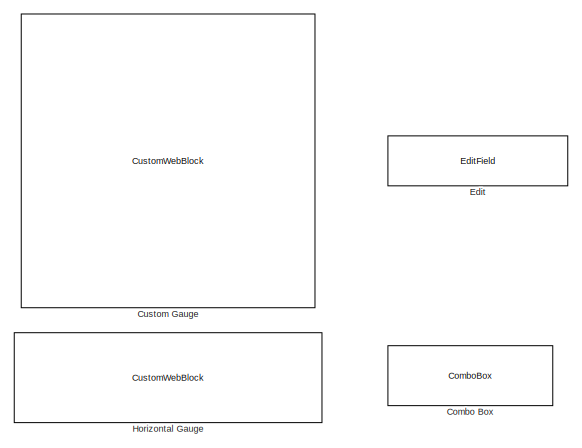
[diagram: root canvas - part 1/2, top left region]
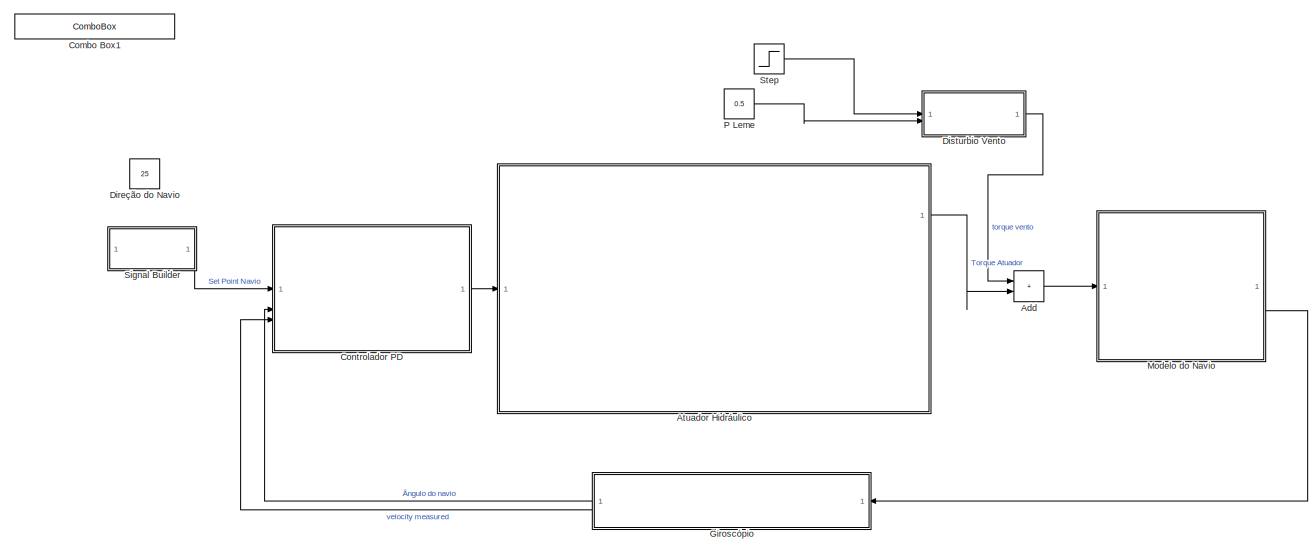
[diagram: root canvas - part 2/2, full width, bottom band]
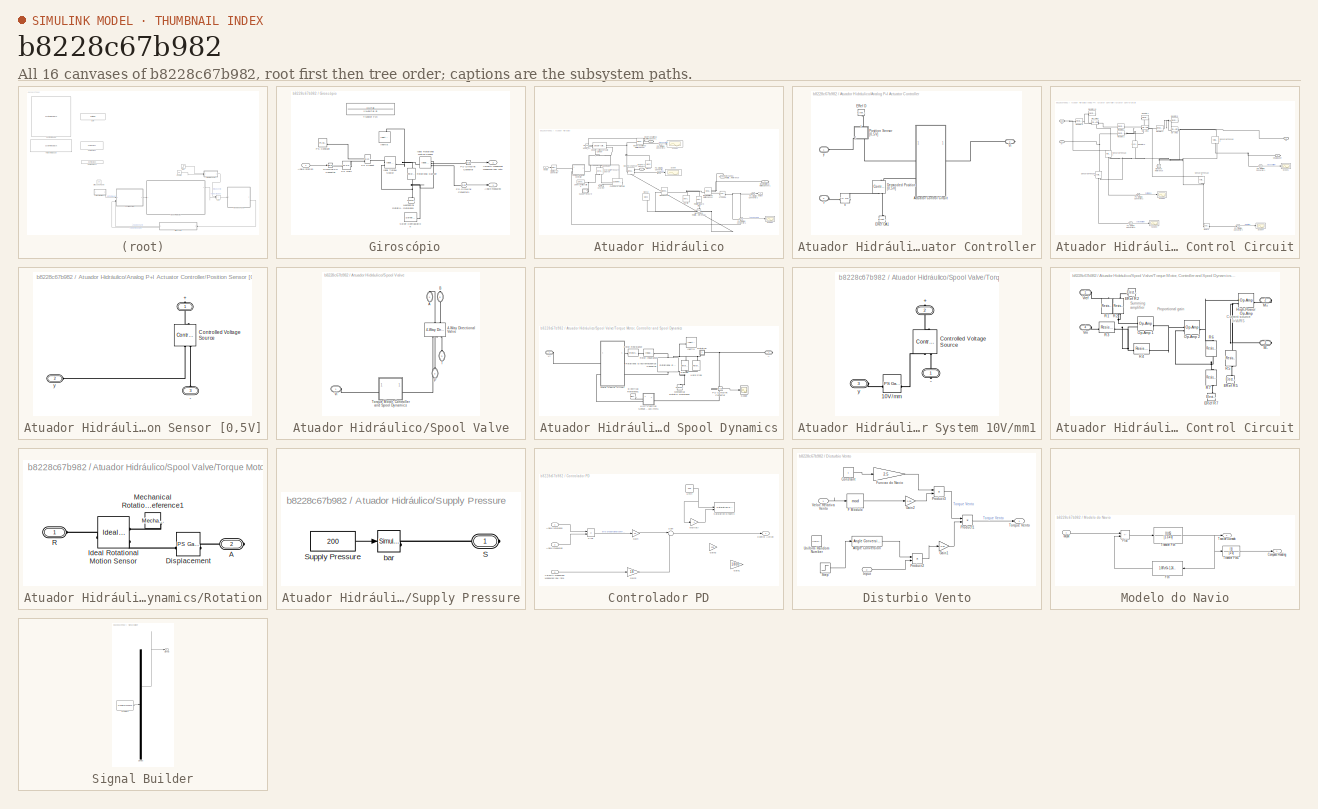
[diagram: thumbnail index - all 16 canvases of the model, root first then tree order]
MODEL slx_b8228c67b982
KIND model
CONFIG AbsTol = 1e-3
CONFIG EnableMultiTasking = on
CONFIG FixedStep = auto
CONFIG MaxStep = 0.02
CONFIG MinStep = auto
CONFIG RelTol = 1e-3
CONFIG SampleTimeConstraint = Unconstrained
CONFIG SolverName = VariableStepAuto
CONFIG StartTime = 0.0
CONFIG StopTime = 30
WORKSPACE source: mxarray member
WORKSPACE lowerLimitSaturation = -0.1
WORKSPACE upperLimitSaturation = 0.1
BLOCK [SubSystem]  Giroscópio
  NameLocation = top
BLOCK [Outport]  Giroscópio/Angle measured
BLOCK [Inport]  Giroscópio/Angle rotation
BLOCK [Reference]  Giroscópio/Ideal Rotational Motion Sensor  REF=fl_lib/Mechanical/Mechanical Sensors/Ideal Rotational
Motion Sensor
  SourceBlock = fl_lib/Mechanical/Mechanical Sensors/Ideal Rotational\nMotion Sensor
  SourceType = Ideal Rotational\nMotion Sensor
BLOCK [Reference]  Giroscópio/Ideal Torque Source  REF=fl_lib/Mechanical/Mechanical Sources/Ideal Torque Source
  SourceBlock = fl_lib/Mechanical/Mechanical Sources/Ideal Torque Source
  SourceType = Ideal Torque Source
BLOCK [Reference]  Giroscópio/Inertia  REF=fl_lib/Mechanical/Rotational Elements/Inertia
  NameLocation = right
  SourceBlock = fl_lib/Mechanical/Rotational Elements/Inertia
  SourceType = Inertia
BLOCK [Reference]  Giroscópio/Mechanical Rotational Reference  REF=fl_lib/Mechanical/Rotational Elements/Mechanical
Rotational Reference
  NameLocation = right
  SourceBlock = fl_lib/Mechanical/Rotational Elements/Mechanical\nRotational Reference
  SourceType = Mechanical\nRotational Reference
BLOCK [Reference]  Giroscópio/PS Constant  REF=fl_lib/Physical Signals/Sources/PS Constant
  SourceBlock = fl_lib/Physical Signals/Sources/PS Constant
  SourceType = PS Constant
BLOCK [Reference]  Giroscópio/PS Gain  REF=fl_lib/Physical Signals/Functions/PS Gain
  SourceBlock = fl_lib/Physical Signals/Functions/PS Gain
  SourceType = PS Gain
BLOCK [Reference]  Giroscópio/PS Product  REF=fl_lib/Physical Signals/Functions/PS Product
  SourceBlock = fl_lib/Physical Signals/Functions/PS Product
  SourceType = PS Product
BLOCK [Reference]  Giroscópio/PS-Simulink Converter  REF=nesl_utility/PS-Simulink
Converter
  SourceBlock = nesl_utility/PS-Simulink\nConverter
  SourceType = PS-Simulink\nConverter
BLOCK [Reference]  Giroscópio/PS-Simulink Converter1  REF=nesl_utility/PS-Simulink
Converter
  SourceBlock = nesl_utility/PS-Simulink\nConverter
  SourceType = PS-Simulink\nConverter
BLOCK [Reference]  Giroscópio/Rotational Damper  REF=fl_lib/Mechanical/Rotational Elements/Rotational Damper
  NameLocation = left
  SourceBlock = fl_lib/Mechanical/Rotational Elements/Rotational Damper
  SourceType = Rotational Damper
BLOCK [Reference]  Giroscópio/Simulink-PS Converter  REF=nesl_utility/Simulink-PS
Converter
  SourceBlock = nesl_utility/Simulink-PS\nConverter
  SourceType = Simulink-PS\nConverter
BLOCK [Reference]  Giroscópio/Solver Configuration  REF=nesl_utility/Solver
Configuration
  SourceBlock = nesl_utility/Solver\nConfiguration
  SourceType = Solver\nConfiguration
BLOCK [TransferFcn]  Giroscópio/Transfer Fcn
  Commented = on
  Denominator = [(1+Js/Fg) 0]
  Numerator = [H/Fg]
BLOCK [Outport]  Giroscópio/Velocity measured//Measured yaw rate
  Port = 2
BLOCK [Sum] Add
  IconShape = rectangular
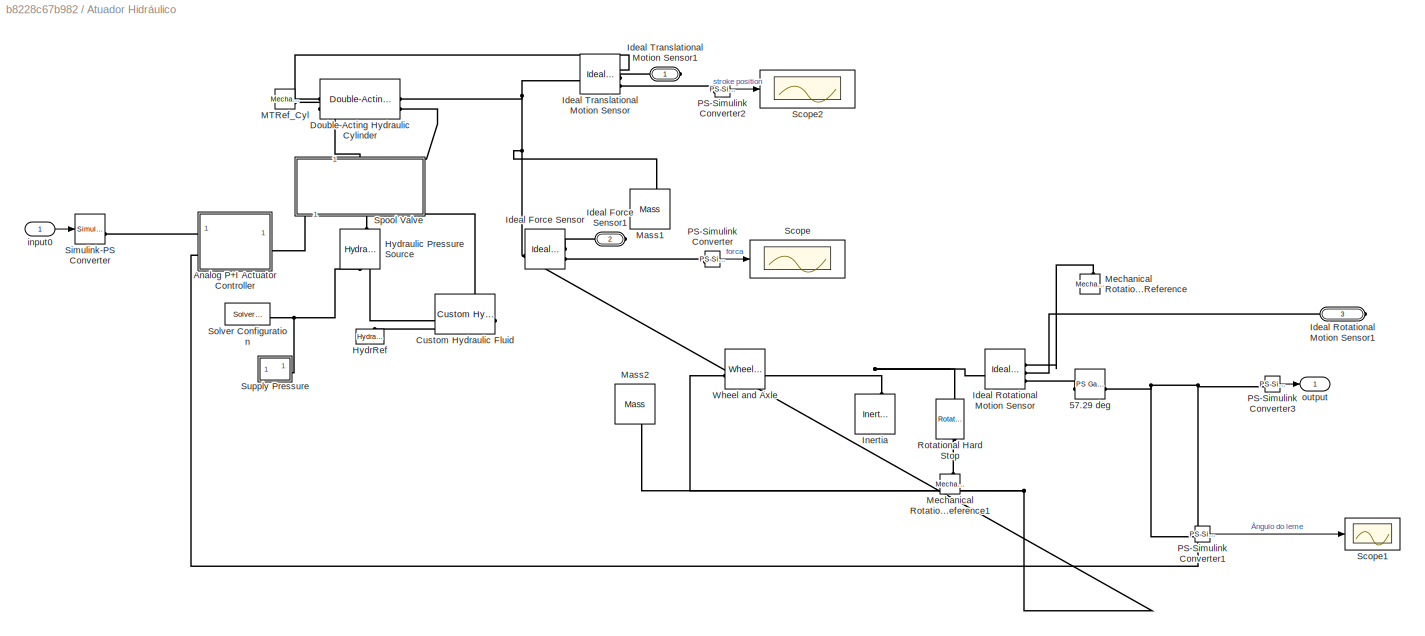
BLOCK [SubSystem] Atuador Hidráulico
BLOCK [Reference] Atuador Hidráulico/57.29 deg  REF=fl_lib/Physical Signals/Functions/PS Gain
  SourceBlock = fl_lib/Physical Signals/Functions/PS Gain
  SourceType = PS Gain
BLOCK [SubSystem] Atuador Hidráulico/Analog P+I Actuator Controller
  NameLocation = top
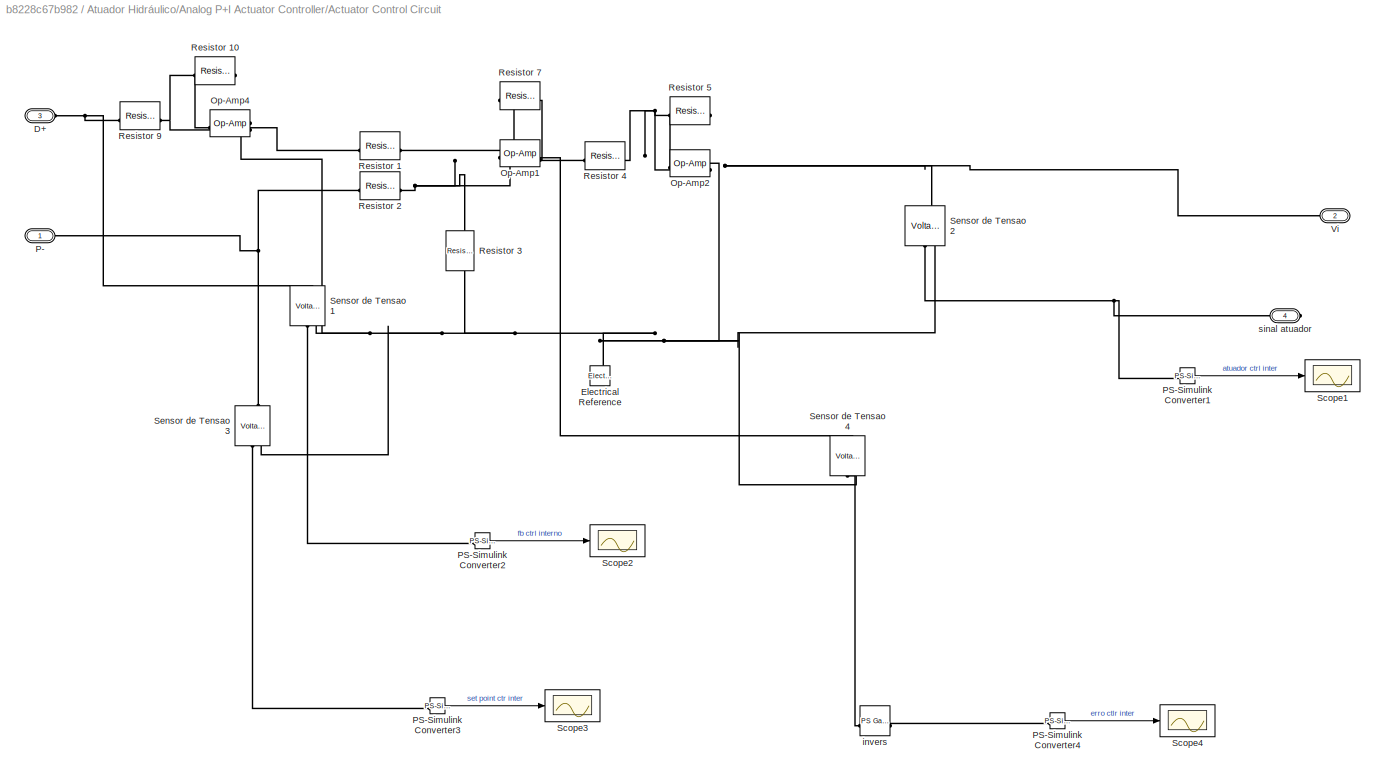
BLOCK [SubSystem] Atuador Hidráulico/Analog P+I Actuator Controller/Actuator Control Circuit
  Tag = PublishSubsystem
BLOCK [PMIOPort] Atuador Hidráulico/Analog P+I Actuator Controller/Actuator Control Circuit/D+
  Port = 3
  Side = Left
BLOCK [Reference] Atuador Hidráulico/Analog P+I Actuator Controller/Actuator Control Circuit/Electrical Reference  REF=fl_lib/Electrical/Electrical Elements/Electrical Reference
  NameLocation = right
  SourceBlock = fl_lib/Electrical/Electrical Elements/Electrical Reference
  SourceType = Electrical Reference
BLOCK [Reference] Atuador Hidráulico/Analog P+I Actuator Controller/Actuator Control Circuit/Op-Amp1  REF=fl_lib/Electrical/Electrical Elements/Op-Amp
  SourceBlock = fl_lib/Electrical/Electrical Elements/Op-Amp
  SourceType = Op-Amp
BLOCK [Reference] Atuador Hidráulico/Analog P+I Actuator Controller/Actuator Control Circuit/Op-Amp2  REF=fl_lib/Electrical/Electrical Elements/Op-Amp
  SourceBlock = fl_lib/Electrical/Electrical Elements/Op-Amp
  SourceType = Op-Amp
BLOCK [Reference] Atuador Hidráulico/Analog P+I Actuator Controller/Actuator Control Circuit/Op-Amp4  REF=fl_lib/Electrical/Electrical Elements/Op-Amp
  SourceBlock = fl_lib/Electrical/Electrical Elements/Op-Amp
  SourceType = Op-Amp
BLOCK [PMIOPort] Atuador Hidráulico/Analog P+I Actuator Controller/Actuator Control Circuit/P-
  Side = Left
BLOCK [Reference] Atuador Hidráulico/Analog P+I Actuator Controller/Actuator Control Circuit/PS-Simulink Converter1  REF=nesl_utility/PS-Simulink
Converter
  SourceBlock = nesl_utility/PS-Simulink\nConverter
  SourceType = PS-Simulink\nConverter
BLOCK [Reference] Atuador Hidráulico/Analog P+I Actuator Controller/Actuator Control Circuit/PS-Simulink Converter2  REF=nesl_utility/PS-Simulink
Converter
  SourceBlock = nesl_utility/PS-Simulink\nConverter
  SourceType = PS-Simulink\nConverter
BLOCK [Reference] Atuador Hidráulico/Analog P+I Actuator Controller/Actuator Control Circuit/PS-Simulink Converter3  REF=nesl_utility/PS-Simulink
Converter
  SourceBlock = nesl_utility/PS-Simulink\nConverter
  SourceType = PS-Simulink\nConverter
BLOCK [Reference] Atuador Hidráulico/Analog P+I Actuator Controller/Actuator Control Circuit/PS-Simulink Converter4  REF=nesl_utility/PS-Simulink
Converter
  SourceBlock = nesl_utility/PS-Simulink\nConverter
  SourceType = PS-Simulink\nConverter
BLOCK [Reference] Atuador Hidráulico/Analog P+I Actuator Controller/Actuator Control Circuit/Resistor 1  REF=fl_lib/Electrical/Electrical Elements/Resistor
  NameLocation = top
  SourceBlock = fl_lib/Electrical/Electrical Elements/Resistor
  SourceType = Resistor
BLOCK [Reference] Atuador Hidráulico/Analog P+I Actuator Controller/Actuator Control Circuit/Resistor 10  REF=fl_lib/Electrical/Electrical Elements/Resistor
  NameLocation = top
  SourceBlock = fl_lib/Electrical/Electrical Elements/Resistor
  SourceType = Resistor
BLOCK [Reference] Atuador Hidráulico/Analog P+I Actuator Controller/Actuator Control Circuit/Resistor 2  REF=fl_lib/Electrical/Electrical Elements/Resistor
  SourceBlock = fl_lib/Electrical/Electrical Elements/Resistor
  SourceType = Resistor
BLOCK [Reference] Atuador Hidráulico/Analog P+I Actuator Controller/Actuator Control Circuit/Resistor 3  REF=fl_lib/Electrical/Electrical Elements/Resistor
  NameLocation = right
  SourceBlock = fl_lib/Electrical/Electrical Elements/Resistor
  SourceType = Resistor
BLOCK [Reference] Atuador Hidráulico/Analog P+I Actuator Controller/Actuator Control Circuit/Resistor 4  REF=fl_lib/Electrical/Electrical Elements/Resistor
  SourceBlock = fl_lib/Electrical/Electrical Elements/Resistor
  SourceType = Resistor
BLOCK [Reference] Atuador Hidráulico/Analog P+I Actuator Controller/Actuator Control Circuit/Resistor 5  REF=fl_lib/Electrical/Electrical Elements/Resistor
  NameLocation = top
  SourceBlock = fl_lib/Electrical/Electrical Elements/Resistor
  SourceType = Resistor
BLOCK [Reference] Atuador Hidráulico/Analog P+I Actuator Controller/Actuator Control Circuit/Resistor 7  REF=fl_lib/Electrical/Electrical Elements/Resistor
  NameLocation = top
  SourceBlock = fl_lib/Electrical/Electrical Elements/Resistor
  SourceType = Resistor
BLOCK [Reference] Atuador Hidráulico/Analog P+I Actuator Controller/Actuator Control Circuit/Resistor 9  REF=fl_lib/Electrical/Electrical Elements/Resistor
  SourceBlock = fl_lib/Electrical/Electrical Elements/Resistor
  SourceType = Resistor
BLOCK [Scope] Atuador Hidráulico/Analog P+I Actuator Controller/Actuator Control Circuit/Scope1
  Floating = off
  NumInputPorts = 1
  ScopeSpecificationString = Simulink.scopes.TimeScopeBlockCfg('CurrentConfiguration', extmgr.ConfigurationSet(extmgr.Configuration('Core','General UI',true),extmgr.Configuration('Core','Source UI',true),extmgr.Configuration('Sources','WiredSimulink',true,'DataLoggingVariableName','ScopeData3'),extmgr.Configuration('Visuals','Time Domain',true,'SerializedDisplays',{struct('MinYLimReal','-437.10511','MaxYLimReal','183.94602','...<+1391ch>
BLOCK [Scope] Atuador Hidráulico/Analog P+I Actuator Controller/Actuator Control Circuit/Scope2
  Floating = off
  NumInputPorts = 1
  ScopeSpecificationString = Simulink.scopes.TimeScopeBlockCfg('CurrentConfiguration', extmgr.ConfigurationSet(extmgr.Configuration('Core','General UI',true),extmgr.Configuration('Core','Source UI',true),extmgr.Configuration('Sources','WiredSimulink',true,'DataLoggingVariableName','ScopeData4'),extmgr.Configuration('Visuals','Time Domain',true,'SerializedDisplays',{struct('MinYLimReal','-450.00000','MaxYLimReal','-250.00000',...<+1385ch>
BLOCK [Scope] Atuador Hidráulico/Analog P+I Actuator Controller/Actuator Control Circuit/Scope3
  Floating = off
  NumInputPorts = 1
  ScopeSpecificationString = Simulink.scopes.TimeScopeBlockCfg('CurrentConfiguration', extmgr.ConfigurationSet(extmgr.Configuration('Core','General UI',true),extmgr.Configuration('Core','Source UI',true),extmgr.Configuration('Sources','WiredSimulink',true,'DataLoggingVariableName','ScopeData5'),extmgr.Configuration('Visuals','Time Domain',true),extmgr.Configuration('Tools','Plot Navigation',true),extmgr.Configuration('Tools',...<+40ch>
BLOCK [Scope] Atuador Hidráulico/Analog P+I Actuator Controller/Actuator Control Circuit/Scope4
  Floating = off
  NumInputPorts = 1
  ScopeSpecificationString = Simulink.scopes.TimeScopeBlockCfg('CurrentConfiguration', extmgr.ConfigurationSet(extmgr.Configuration('Core','General UI',true),extmgr.Configuration('Core','Source UI',true),extmgr.Configuration('Sources','WiredSimulink',true,'DataLoggingVariableName','ScopeData6'),extmgr.Configuration('Visuals','Time Domain',true),extmgr.Configuration('Tools','Plot Navigation',true),extmgr.Configuration('Tools',...<+40ch>
BLOCK [Reference] Atuador Hidráulico/Analog P+I Actuator Controller/Actuator Control Circuit/Sensor de Tensao 1  REF=fl_lib/Electrical/Electrical Sensors/Voltage Sensor
  NameLocation = right
  SourceBlock = fl_lib/Electrical/Electrical Sensors/Voltage Sensor
  SourceType = Voltage Sensor
BLOCK [Reference] Atuador Hidráulico/Analog P+I Actuator Controller/Actuator Control Circuit/Sensor de Tensao 2  REF=fl_lib/Electrical/Electrical Sensors/Voltage Sensor
  NameLocation = right
  SourceBlock = fl_lib/Electrical/Electrical Sensors/Voltage Sensor
  SourceType = Voltage Sensor
BLOCK [Reference] Atuador Hidráulico/Analog P+I Actuator Controller/Actuator Control Circuit/Sensor de Tensao 3  REF=fl_lib/Electrical/Electrical Sensors/Voltage Sensor
  NameLocation = right
  SourceBlock = fl_lib/Electrical/Electrical Sensors/Voltage Sensor
  SourceType = Voltage Sensor
BLOCK [Reference] Atuador Hidráulico/Analog P+I Actuator Controller/Actuator Control Circuit/Sensor de Tensao 4  REF=fl_lib/Electrical/Electrical Sensors/Voltage Sensor
  NameLocation = right
  SourceBlock = fl_lib/Electrical/Electrical Sensors/Voltage Sensor
  SourceType = Voltage Sensor
BLOCK [PMIOPort] Atuador Hidráulico/Analog P+I Actuator Controller/Actuator Control Circuit/Vi
  Port = 2
  Side = Right
BLOCK [Reference] Atuador Hidráulico/Analog P+I Actuator Controller/Actuator Control Circuit/invers  REF=fl_lib/Physical Signals/Functions/PS Gain
  SourceBlock = fl_lib/Physical Signals/Functions/PS Gain
  SourceType = PS Gain
BLOCK [PMIOPort] Atuador Hidráulico/Analog P+I Actuator Controller/Actuator Control Circuit/sinal atuador
  NameLocation = top
  Port = 4
  Side = Right
BLOCK [Reference] Atuador Hidráulico/Analog P+I Actuator Controller/Demanded Position [0,5V]  REF=fl_lib/Electrical/Electrical Sources/Controlled Voltage
Source
  NameLocation = left
  SourceBlock = fl_lib/Electrical/Electrical Sources/Controlled Voltage\nSource
  SourceType = Controlled Voltage\nSource
BLOCK [Reference] Atuador Hidráulico/Analog P+I Actuator Controller/ERef D  REF=fl_lib/Electrical/Electrical Elements/Electrical Reference
  NameLocation = left
  SourceBlock = fl_lib/Electrical/Electrical Elements/Electrical Reference
  SourceType = Electrical Reference
BLOCK [Reference] Atuador Hidráulico/Analog P+I Actuator Controller/ERef OA1  REF=fl_lib/Electrical/Electrical Elements/Electrical Reference
  NameLocation = right
  SourceBlock = fl_lib/Electrical/Electrical Elements/Electrical Reference
  SourceType = Electrical Reference
BLOCK [SubSystem] Atuador Hidráulico/Analog P+I Actuator Controller/Position Sensor [0,5V]
  NameLocation = left
BLOCK [PMIOPort] Atuador Hidráulico/Analog P+I Actuator Controller/Position Sensor [0,5V]/+
  NameLocation = right
  Side = Right
BLOCK [PMIOPort] Atuador Hidráulico/Analog P+I Actuator Controller/Position Sensor [0,5V]/-
  NameLocation = right
  Port = 3
  Side = Left
BLOCK [Reference] Atuador Hidráulico/Analog P+I Actuator Controller/Position Sensor [0,5V]/Controlled Voltage Source  REF=fl_lib/Electrical/Electrical Sources/Controlled Voltage
Source
  NameLocation = right
  SourceBlock = fl_lib/Electrical/Electrical Sources/Controlled Voltage\nSource
  SourceType = Controlled Voltage\nSource
BLOCK [PMIOPort] Atuador Hidráulico/Analog P+I Actuator Controller/Position Sensor [0,5V]/y
  Port = 2
  Side = Left
BLOCK [Reference] Atuador Hidráulico/Analog P+I Actuator Controller/V  REF=fl_lib/Physical Signals/Functions/PS Gain
  SourceBlock = fl_lib/Physical Signals/Functions/PS Gain
  SourceType = PS Gain
BLOCK [PMIOPort] Atuador Hidráulico/Analog P+I Actuator Controller/Vi
  Port = 3
  Side = Right
BLOCK [PMIOPort] Atuador Hidráulico/Analog P+I Actuator Controller/r
  Port = 2
  Side = Left
  Tag = PMCPort
BLOCK [PMIOPort] Atuador Hidráulico/Analog P+I Actuator Controller/y
  Side = Left
  Tag = PMCPort
BLOCK [Reference] Atuador Hidráulico/Custom Hydraulic Fluid  REF=fl_lib/Hydraulic/Hydraulic Utilities/Custom Hydraulic
Fluid
  NameLocation = top
  SourceBlock = fl_lib/Hydraulic/Hydraulic Utilities/Custom Hydraulic\nFluid
  SourceType = Custom Hydraulic\nFluid
BLOCK [Reference] Atuador Hidráulico/Double-Acting Hydraulic Cylinder  REF=sh_lib/Hydraulic Cylinders/Double-Acting
Hydraulic Cylinder
  SourceBlock = sh_lib/Hydraulic Cylinders/Double-Acting\nHydraulic Cylinder
  SourceType = Double-Acting\nHydraulic Cylinder
BLOCK [Reference] Atuador Hidráulico/HydrRef  REF=fl_lib/Hydraulic/Hydraulic Elements/Hydraulic Reference
  NameLocation = right
  SourceBlock = fl_lib/Hydraulic/Hydraulic Elements/Hydraulic Reference
  SourceType = Hydraulic Reference
BLOCK [Reference] Atuador Hidráulico/Hydraulic Pressure Source  REF=fl_lib/Hydraulic/Hydraulic Sources/Hydraulic Pressure
Source
  NameLocation = left
  SourceBlock = fl_lib/Hydraulic/Hydraulic Sources/Hydraulic Pressure\nSource
  SourceType = Hydraulic Pressure\nSource
BLOCK [Reference] Atuador Hidráulico/Ideal Force Sensor  REF=fl_lib/Mechanical/Mechanical Sensors/Ideal Force Sensor
  SourceBlock = fl_lib/Mechanical/Mechanical Sensors/Ideal Force Sensor
  SourceType = Ideal Force Sensor
BLOCK [PMIOPort] Atuador Hidráulico/Ideal Force Sensor1
  Port = 2
  Side = Right
BLOCK [Reference] Atuador Hidráulico/Ideal Rotational Motion Sensor  REF=fl_lib/Mechanical/Mechanical Sensors/Ideal Rotational
Motion Sensor
  SourceBlock = fl_lib/Mechanical/Mechanical Sensors/Ideal Rotational\nMotion Sensor
  SourceType = Ideal Rotational\nMotion Sensor
BLOCK [PMIOPort] Atuador Hidráulico/Ideal Rotational Motion Sensor1
  Port = 3
  Side = Right
BLOCK [Reference] Atuador Hidráulico/Ideal Translational Motion Sensor  REF=fl_lib/Mechanical/Mechanical Sensors/Ideal Translational
Motion Sensor
  SourceBlock = fl_lib/Mechanical/Mechanical Sensors/Ideal Translational\nMotion Sensor
  SourceType = Ideal Translational\nMotion Sensor
BLOCK [PMIOPort] Atuador Hidráulico/Ideal Translational Motion Sensor1
  Side = Right
BLOCK [Reference] Atuador Hidráulico/Inertia  REF=fl_lib/Mechanical/Rotational Elements/Inertia
  NameLocation = right
  SourceBlock = fl_lib/Mechanical/Rotational Elements/Inertia
  SourceType = Inertia
BLOCK [Reference] Atuador Hidráulico/MTRef_Cyl  REF=fl_lib/Mechanical/Translational
Elements/Mechanical
Translational
Reference
  SourceBlock = fl_lib/Mechanical/Translational\nElements/Mechanical\nTranslational\nReference
  SourceType = Mechanical\nTranslational\nReference
BLOCK [Reference] Atuador Hidráulico/Mass1  REF=fl_lib/Mechanical/Translational
Elements/Mass
  NameLocation = left
  SourceBlock = fl_lib/Mechanical/Translational\nElements/Mass
  SourceType = Mass
BLOCK [Reference] Atuador Hidráulico/Mass2  REF=fl_lib/Mechanical/Translational
Elements/Mass
  NameLocation = left
  SourceBlock = fl_lib/Mechanical/Translational\nElements/Mass
  SourceType = Mass
BLOCK [Reference] Atuador Hidráulico/Mechanical Rotational Reference  REF=fl_lib/Mechanical/Rotational Elements/Mechanical
Rotational Reference
  NameLocation = right
  SourceBlock = fl_lib/Mechanical/Rotational Elements/Mechanical\nRotational Reference
  SourceType = Mechanical\nRotational Reference
BLOCK [Reference] Atuador Hidráulico/Mechanical Rotational Reference1  REF=fl_lib/Mechanical/Rotational Elements/Mechanical
Rotational Reference
  NameLocation = right
  SourceBlock = fl_lib/Mechanical/Rotational Elements/Mechanical\nRotational Reference
  SourceType = Mechanical\nRotational Reference
BLOCK [Reference] Atuador Hidráulico/PS-Simulink Converter  REF=nesl_utility/PS-Simulink
Converter
  SourceBlock = nesl_utility/PS-Simulink\nConverter
  SourceType = PS-Simulink\nConverter
BLOCK [Reference] Atuador Hidráulico/PS-Simulink Converter1  REF=nesl_utility/PS-Simulink
Converter
  SourceBlock = nesl_utility/PS-Simulink\nConverter
  SourceType = PS-Simulink\nConverter
BLOCK [Reference] Atuador Hidráulico/PS-Simulink Converter2  REF=nesl_utility/PS-Simulink
Converter
  SourceBlock = nesl_utility/PS-Simulink\nConverter
  SourceType = PS-Simulink\nConverter
BLOCK [Reference] Atuador Hidráulico/PS-Simulink Converter3  REF=nesl_utility/PS-Simulink
Converter
  SourceBlock = nesl_utility/PS-Simulink\nConverter
  SourceType = PS-Simulink\nConverter
BLOCK [Reference] Atuador Hidráulico/Rotational Hard Stop  REF=fl_lib/Mechanical/Rotational Elements/Rotational Hard Stop
  NameLocation = left
  SourceBlock = fl_lib/Mechanical/Rotational Elements/Rotational Hard Stop
  SourceType = Rotational Hard Stop
BLOCK [Scope] Atuador Hidráulico/Scope
  Floating = off
  NumInputPorts = 1
  ScopeSpecificationString = Simulink.scopes.TimeScopeBlockCfg('CurrentConfiguration', extmgr.ConfigurationSet(extmgr.Configuration('Core','General UI',true),extmgr.Configuration('Core','Source UI',true),extmgr.Configuration('Sources','WiredSimulink',true,'DataLoggingVariableName','ScopeData1'),extmgr.Configuration('Visuals','Time Domain',true,'SerializedDisplays',{struct('MinYLimReal','-1.00000','MaxYLimReal','1.00000','YLab...<+1421ch>
BLOCK [Scope] Atuador Hidráulico/Scope1
  Floating = off
  NumInputPorts = 1
  ScopeSpecificationString = Simulink.scopes.TimeScopeBlockCfg('CurrentConfiguration', extmgr.ConfigurationSet(extmgr.Configuration('Core','General UI',true),extmgr.Configuration('Core','Source UI',true),extmgr.Configuration('Sources','WiredSimulink',true,'DataLoggingVariableName','ScopeData2'),extmgr.Configuration('Visuals','Time Domain',true,'SerializedDisplays',{struct('MinYLimReal','-32.36718','MaxYLimReal','4.82581','YLa...<+1408ch>
BLOCK [Scope] Atuador Hidráulico/Scope2
  Floating = off
  NumInputPorts = 1
  ScopeSpecificationString = Simulink.scopes.TimeScopeBlockCfg('CurrentConfiguration', extmgr.ConfigurationSet(extmgr.Configuration('Core','General UI',true),extmgr.Configuration('Core','Source UI',true),extmgr.Configuration('Sources','WiredSimulink',true,'DataLoggingVariableName','ScopeData1'),extmgr.Configuration('Visuals','Time Domain',true,'SerializedDisplays',{struct('MinYLimReal','-0.24592','MaxYLimReal','0.05309','YLab...<+1679ch>
BLOCK [Reference] Atuador Hidráulico/Simulink-PS Converter  REF=nesl_utility/Simulink-PS
Converter
  SourceBlock = nesl_utility/Simulink-PS\nConverter
  SourceType = Simulink-PS\nConverter
BLOCK [Reference] Atuador Hidráulico/Solver Configuration  REF=nesl_utility/Solver
Configuration
  SourceBlock = nesl_utility/Solver\nConfiguration
  SourceType = Solver\nConfiguration
BLOCK [SubSystem] Atuador Hidráulico/Spool Valve
  NameLocation = right
  Tag = PublishSubsystem
BLOCK [Reference] Atuador Hidráulico/Spool Valve/4-Way Directional Valve  REF=sh_lib/Valves/Directional Valves/4-Way Directional
Valve
  NameLocation = right
  SourceBlock = sh_lib/Valves/Directional Valves/4-Way Directional\nValve
  SourceType = 4-Way Directional\nValve
BLOCK [PMIOPort] Atuador Hidráulico/Spool Valve/A
  NameLocation = right
  Port = 4
  Side = Right
  Tag = PMCPort
BLOCK [PMIOPort] Atuador Hidráulico/Spool Valve/B
  NameLocation = right
  Port = 5
  Side = Right
  Tag = PMCPort
BLOCK [PMIOPort] Atuador Hidráulico/Spool Valve/P
  NameLocation = right
  Port = 2
  Side = Left
  Tag = PMCPort
BLOCK [PMIOPort] Atuador Hidráulico/Spool Valve/T
  NameLocation = right
  Port = 3
  Side = Left
  Tag = PMCPort
BLOCK [SubSystem] Atuador Hidráulico/Spool Valve/Torque Motor, Controller and Spool Dynamics
BLOCK [PMIOPort] Atuador Hidráulico/Spool Valve/Torque Motor, Controller and Spool Dynamics/A
  Port = 2
  Side = Right
BLOCK [Reference] Atuador Hidráulico/Spool Valve/Torque Motor, Controller and Spool Dynamics/Damper  REF=fl_lib/Mechanical/Rotational Elements/Rotational Damper
  NameLocation = right
  SourceBlock = fl_lib/Mechanical/Rotational Elements/Rotational Damper
  SourceType = Rotational Damper
BLOCK [Reference] Atuador Hidráulico/Spool Valve/Torque Motor, Controller and Spool Dynamics/Electrical Reference1  REF=fl_lib/Electrical/Electrical Elements/Electrical Reference
  NameLocation = top
  SourceBlock = fl_lib/Electrical/Electrical Elements/Electrical Reference
  SourceType = Electrical Reference
BLOCK [Reference] Atuador Hidráulico/Spool Valve/Torque Motor, Controller and Spool Dynamics/Hard Stop  REF=fl_lib/Mechanical/Rotational Elements/Rotational Hard Stop
  NameLocation = right
  SourceBlock = fl_lib/Mechanical/Rotational Elements/Rotational Hard Stop
  SourceType = Rotational Hard Stop
BLOCK [Reference] Atuador Hidráulico/Spool Valve/Torque Motor, Controller and Spool Dynamics/Inertia  REF=fl_lib/Mechanical/Rotational Elements/Inertia
  SourceBlock = fl_lib/Mechanical/Rotational Elements/Inertia
  SourceType = Inertia
BLOCK [SubSystem] Atuador Hidráulico/Spool Valve/Torque Motor, Controller and Spool Dynamics/LVDT Position Sensor System 10V//mm1
BLOCK [PMIOPort] Atuador Hidráulico/Spool Valve/Torque Motor, Controller and Spool Dynamics/LVDT Position Sensor System 10V//mm1/+
  NameLocation = right
  Port = 2
  Side = Right
BLOCK [PMIOPort] Atuador Hidráulico/Spool Valve/Torque Motor, Controller and Spool Dynamics/LVDT Position Sensor System 10V//mm1/-
  NameLocation = right
  Side = Right
BLOCK [Reference] Atuador Hidráulico/Spool Valve/Torque Motor, Controller and Spool Dynamics/LVDT Position Sensor System 10V//mm1/10V//mm  REF=fl_lib/Physical Signals/Functions/PS Gain
  SourceBlock = fl_lib/Physical Signals/Functions/PS Gain
  SourceType = PS Gain
BLOCK [Reference] Atuador Hidráulico/Spool Valve/Torque Motor, Controller and Spool Dynamics/LVDT Position Sensor System 10V//mm1/Controlled Voltage Source  REF=fl_lib/Electrical/Electrical Sources/Controlled Voltage
Source
  NameLocation = right
  SourceBlock = fl_lib/Electrical/Electrical Sources/Controlled Voltage\nSource
  SourceType = Controlled Voltage\nSource
BLOCK [PMIOPort] Atuador Hidráulico/Spool Valve/Torque Motor, Controller and Spool Dynamics/LVDT Position Sensor System 10V//mm1/y
  Port = 3
  Side = Left
BLOCK [Reference] Atuador Hidráulico/Spool Valve/Torque Motor, Controller and Spool Dynamics/Mechanical Rotational Reference  REF=fl_lib/Mechanical/Rotational Elements/Mechanical
Rotational Reference
  NameLocation = right
  SourceBlock = fl_lib/Mechanical/Rotational Elements/Mechanical\nRotational Reference
  SourceType = Mechanical\nRotational Reference
BLOCK [SubSystem] Atuador Hidráulico/Spool Valve/Torque Motor, Controller and Spool Dynamics/Motor Control Circuit
  Tag = PublishSubsystem
BLOCK [Reference] Atuador Hidráulico/Spool Valve/Torque Motor, Controller and Spool Dynamics/Motor Control Circuit/ERef R2  REF=fl_lib/Electrical/Electrical Elements/Electrical Reference
  NameLocation = top
  SourceBlock = fl_lib/Electrical/Electrical Elements/Electrical Reference
  SourceType = Electrical Reference
BLOCK [Reference] Atuador Hidráulico/Spool Valve/Torque Motor, Controller and Spool Dynamics/Motor Control Circuit/ERef R5  REF=fl_lib/Electrical/Electrical Elements/Electrical Reference
  NameLocation = right
  SourceBlock = fl_lib/Electrical/Electrical Elements/Electrical Reference
  SourceType = Electrical Reference
BLOCK [Reference] Atuador Hidráulico/Spool Valve/Torque Motor, Controller and Spool Dynamics/Motor Control Circuit/ERef R7  REF=fl_lib/Electrical/Electrical Elements/Electrical Reference
  NameLocation = left
  SourceBlock = fl_lib/Electrical/Electrical Elements/Electrical Reference
  SourceType = Electrical Reference
BLOCK [Reference] Atuador Hidráulico/Spool Valve/Torque Motor, Controller and Spool Dynamics/Motor Control Circuit/High-Power Op-Amp  REF=fl_lib/Electrical/Electrical Elements/Op-Amp
  NameLocation = top
  SourceBlock = fl_lib/Electrical/Electrical Elements/Op-Amp
  SourceType = Op-Amp
BLOCK [PMIOPort] Atuador Hidráulico/Spool Valve/Torque Motor, Controller and Spool Dynamics/Motor Control Circuit/M+
  Port = 2
  Side = Right
BLOCK [PMIOPort] Atuador Hidráulico/Spool Valve/Torque Motor, Controller and Spool Dynamics/Motor Control Circuit/M-
  Port = 3
  Side = Right
BLOCK [Reference] Atuador Hidráulico/Spool Valve/Torque Motor, Controller and Spool Dynamics/Motor Control Circuit/Op-Amp 1  REF=fl_lib/Electrical/Electrical Elements/Op-Amp
  SourceBlock = fl_lib/Electrical/Electrical Elements/Op-Amp
  SourceType = Op-Amp
BLOCK [Reference] Atuador Hidráulico/Spool Valve/Torque Motor, Controller and Spool Dynamics/Motor Control Circuit/Op-Amp 2  REF=fl_lib/Electrical/Electrical Elements/Op-Amp
  SourceBlock = fl_lib/Electrical/Electrical Elements/Op-Amp
  SourceType = Op-Amp
BLOCK [Reference] Atuador Hidráulico/Spool Valve/Torque Motor, Controller and Spool Dynamics/Motor Control Circuit/R1  REF=fl_lib/Electrical/Electrical Elements/Resistor
  NameLocation = left
  SourceBlock = fl_lib/Electrical/Electrical Elements/Resistor
  SourceType = Resistor
BLOCK [Reference] Atuador Hidráulico/Spool Valve/Torque Motor, Controller and Spool Dynamics/Motor Control Circuit/R2  REF=fl_lib/Electrical/Electrical Elements/Resistor
  NameLocation = right
  SourceBlock = fl_lib/Electrical/Electrical Elements/Resistor
  SourceType = Resistor
BLOCK [Reference] Atuador Hidráulico/Spool Valve/Torque Motor, Controller and Spool Dynamics/Motor Control Circuit/R3  REF=fl_lib/Electrical/Electrical Elements/Resistor
  SourceBlock = fl_lib/Electrical/Electrical Elements/Resistor
  SourceType = Resistor
BLOCK [Reference] Atuador Hidráulico/Spool Valve/Torque Motor, Controller and Spool Dynamics/Motor Control Circuit/R4  REF=fl_lib/Electrical/Electrical Elements/Resistor
  SourceBlock = fl_lib/Electrical/Electrical Elements/Resistor
  SourceType = Resistor
BLOCK [Reference] Atuador Hidráulico/Spool Valve/Torque Motor, Controller and Spool Dynamics/Motor Control Circuit/R5  REF=fl_lib/Electrical/Electrical Elements/Resistor
  NameLocation = right
  SourceBlock = fl_lib/Electrical/Electrical Elements/Resistor
  SourceType = Resistor
BLOCK [Reference] Atuador Hidráulico/Spool Valve/Torque Motor, Controller and Spool Dynamics/Motor Control Circuit/R6  REF=fl_lib/Electrical/Electrical Elements/Resistor
  NameLocation = left
  SourceBlock = fl_lib/Electrical/Electrical Elements/Resistor
  SourceType = Resistor
BLOCK [Reference] Atuador Hidráulico/Spool Valve/Torque Motor, Controller and Spool Dynamics/Motor Control Circuit/R7  REF=fl_lib/Electrical/Electrical Elements/Resistor
  NameLocation = left
  SourceBlock = fl_lib/Electrical/Electrical Elements/Resistor
  SourceType = Resistor
BLOCK [PMIOPort] Atuador Hidráulico/Spool Valve/Torque Motor, Controller and Spool Dynamics/Motor Control Circuit/Vm
  Port = 4
  Side = Left
BLOCK [PMIOPort] Atuador Hidráulico/Spool Valve/Torque Motor, Controller and Spool Dynamics/Motor Control Circuit/Vref
  Side = Left
BLOCK [Reference] Atuador Hidráulico/Spool Valve/Torque Motor, Controller and Spool Dynamics/PS-Simulink Converter  REF=nesl_utility/PS-Simulink
Converter
  SourceBlock = nesl_utility/PS-Simulink\nConverter
  SourceType = PS-Simulink\nConverter
BLOCK [SubSystem] Atuador Hidráulico/Spool Valve/Torque Motor, Controller and Spool Dynamics/Rotation
BLOCK [PMIOPort] Atuador Hidráulico/Spool Valve/Torque Motor, Controller and Spool Dynamics/Rotation/A
  Port = 2
  Side = Right
BLOCK [Reference] Atuador Hidráulico/Spool Valve/Torque Motor, Controller and Spool Dynamics/Rotation/Displacement  REF=fl_lib/Physical Signals/Functions/PS Gain
  SourceBlock = fl_lib/Physical Signals/Functions/PS Gain
  SourceType = PS Gain
BLOCK [Reference] Atuador Hidráulico/Spool Valve/Torque Motor, Controller and Spool Dynamics/Rotation/Ideal Rotational Motion Sensor  REF=fl_lib/Mechanical/Mechanical Sensors/Ideal Rotational
Motion Sensor
  SourceBlock = fl_lib/Mechanical/Mechanical Sensors/Ideal Rotational\nMotion Sensor
  SourceType = Ideal Rotational\nMotion Sensor
BLOCK [Reference] Atuador Hidráulico/Spool Valve/Torque Motor, Controller and Spool Dynamics/Rotation/Mechanical Rotational Reference1  REF=fl_lib/Mechanical/Rotational Elements/Mechanical
Rotational Reference
  NameLocation = top
  SourceBlock = fl_lib/Mechanical/Rotational Elements/Mechanical\nRotational Reference
  SourceType = Mechanical\nRotational Reference
BLOCK [PMIOPort] Atuador Hidráulico/Spool Valve/Torque Motor, Controller and Spool Dynamics/Rotation/R
  Side = Left
BLOCK [Reference] Atuador Hidráulico/Spool Valve/Torque Motor, Controller and Spool Dynamics/Rotational Electromechanical Converter  REF=fl_lib/Electrical/Electrical Elements/Rotational
Electromechanical
Converter
  NameLocation = left
  SourceBlock = fl_lib/Electrical/Electrical Elements/Rotational\nElectromechanical\nConverter
  SourceType = Rotational\nElectromechanical\nConverter
BLOCK [Reference] Atuador Hidráulico/Spool Valve/Torque Motor, Controller and Spool Dynamics/Rotor Inductance  REF=fl_lib/Electrical/Electrical Elements/Inductor
  SourceBlock = fl_lib/Electrical/Electrical Elements/Inductor
  SourceType = Inductor
BLOCK [Reference] Atuador Hidráulico/Spool Valve/Torque Motor, Controller and Spool Dynamics/Rotor Resistance  REF=fl_lib/Electrical/Electrical Elements/Resistor
  SourceBlock = fl_lib/Electrical/Electrical Elements/Resistor
  SourceType = Resistor
  Tag = Factory Generic
BLOCK [Scope] Atuador Hidráulico/Spool Valve/Torque Motor, Controller and Spool Dynamics/Scope
  Floating = off
  NumInputPorts = 1
  ScopeSpecificationString = Simulink.scopes.TimeScopeBlockCfg('CurrentConfiguration', extmgr.ConfigurationSet(extmgr.Configuration('Core','General UI',true),extmgr.Configuration('Core','Source UI',true),extmgr.Configuration('Sources','WiredSimulink',true,'DataLoggingVariableName','ScopeData1'),extmgr.Configuration('Visuals','Time Domain',true,'SerializedDisplays',{struct('MinYLimReal','-0.00063','MaxYLimReal','0.00063','YLab...<+1380ch>
BLOCK [PMIOPort] Atuador Hidráulico/Spool Valve/Torque Motor, Controller and Spool Dynamics/Vi
  Side = Left
BLOCK [PMIOPort] Atuador Hidráulico/Spool Valve/Vi
  Side = Left
  Tag = PMCPort
BLOCK [SubSystem] Atuador Hidráulico/Supply Pressure
BLOCK [PMIOPort] Atuador Hidráulico/Supply Pressure/S
  Side = Right
BLOCK [Constant] Atuador Hidráulico/Supply Pressure/Supply Pressure
  Value = 200
BLOCK [Reference] Atuador Hidráulico/Supply Pressure/bar  REF=nesl_utility/Simulink-PS
Converter
  SourceBlock = nesl_utility/Simulink-PS\nConverter
  SourceType = Simulink-PS\nConverter
BLOCK [Reference] Atuador Hidráulico/Wheel and Axle  REF=fl_lib/Mechanical/Mechanisms/Wheel and Axle
  NameLocation = top
  SourceBlock = fl_lib/Mechanical/Mechanisms/Wheel and Axle
  SourceType = Wheel and Axle
BLOCK [Inport] Atuador Hidráulico/input0
BLOCK [Outport] Atuador Hidráulico/output
BLOCK [ComboBox] Combo Box
  SelectedLabel = 20
BLOCK [ComboBox] Combo Box1
  LabelPosition = Hide
  SelectedLabel = Normal
BLOCK [SubSystem] Controlador PD
BLOCK [Inport] Controlador PD/Angle measured
  Port = 2
BLOCK [Inport] Controlador PD/Angle reference
BLOCK [Outport] Controlador PD/Control Action
BLOCK [Gain] Controlador PD/Gain
  Gain = 10
BLOCK [Gain] Controlador PD/Gain1
  Gain = 1800
BLOCK [Gain] Controlador PD/Gain2
  Gain = 18
BLOCK [Gain] Controlador PD/Gain3
  Gain = 150
BLOCK [Constant] Controlador PD/Limit
  Commented = on
  Value = 0.35
BLOCK [Gain] Controlador PD/Multiply
  Commented = on
  Gain = -1
BLOCK [Sum] Controlador PD/Plus
  IconShape = rectangular
  Inputs = +-
BLOCK [Reference] Controlador PD/Saturation Dynamic  REF=simulink/Discontinuities/Saturation
Dynamic
  Commented = on
  SourceBlock = simulink/Discontinuities/Saturation\nDynamic
  SourceType = Saturation Dynamic
BLOCK [Sum] Controlador PD/Sum
  Inputs = |+-
BLOCK [Inport] Controlador PD/Velocity measured//Measured yaw rate
  Port = 3
BLOCK [CustomWebBlock] Custom Gauge
  Configuration = {"components":[{"name":"CircularScaleComponent","settings":{"bounds":{"max":180,"min":-180,"tickInterval":"auto"},"direction":"cw","flipLimits":0,"innerRadius":0.4437938380012364,"internalTickHeightScaleFactor":1,"labelColor":[250,245,200],"labelFont":{"font":"Arial","fontSize":12},"labelRadius":0.36,"labelTransparency":1,"minorTickHeightScaleFactor":0.2,"needleImage":{"size":[0,0],"src":"data:ima...<+21597ch>
BLOCK [Constant] Direção do Navio
  Value = 25
BLOCK [SubSystem] Disturbio Vento
BLOCK [Reference] Disturbio Vento/Angle Conversion  REF=aerolibconvert2/Angle Conversion
  SourceBlock = aerolibconvert2/Angle Conversion
  SourceType = Angle Conversion
BLOCK [Constant] Disturbio Vento/Constant
BLOCK [Math] Disturbio Vento/F Módulo
  Operator = mod
BLOCK [Gain] Disturbio Vento/Funcao do Navio
  Gain = 2.5
BLOCK [Gain] Disturbio Vento/Gain1
  Gain = 0.02
BLOCK [Gain] Disturbio Vento/Gain2
  Gain = 0.25
BLOCK [Inport] Disturbio Vento/Input
  Port = 2
BLOCK [Product] Disturbio Vento/Product1
BLOCK [Product] Disturbio Vento/Product2
BLOCK [Product] Disturbio Vento/Product3
BLOCK [Step] Disturbio Vento/Step
  After = pi*0.5
  SampleTime = 0
BLOCK [Outport] Disturbio Vento/Torque Vento
BLOCK [UniformRandomNumber] Disturbio Vento/Uniform Random Number
  Maximum = 2*pi
  Minimum = -2*pi
  SampleTime = 30
BLOCK [Inport] Disturbio Vento/Veloc Relativa Vento
BLOCK [EditField] Edit
  Alignment = Center
  ShowInitialText = on
BLOCK [CustomWebBlock] Horizontal Gauge
  Configuration = {"components":[{"name":"LinearScaleComponent","settings":{"bounds":{"max":35,"min":-35,"tickInterval":"auto"},"labelColor":[250,245,199],"labelFont":{"font":"Arial","fontSize":12},"labelOffset":0.05,"labelTransparency":1,"needleImage":{"size":[21,75],"src":"data:image\/svg+xml;base64,PHN2ZyB4bWxucz0iaHR0cDovL3d3dy53My5vcmcvMjAwMC9zdmciIHhtbG5zOnhsaW5rPSJodHRwOi8vd3d3LnczLm9yZy8xOTk5L3hsaW5rIiB2aWV...<+5560ch>
  ShowInitialText = on
BLOCK [SubSystem] Modelo do Navio
BLOCK [Outport] Modelo do Navio/Compass Heading
BLOCK [Fcn] Modelo do Navio/Fcn
  Expr = 1.06*u^3+1.24*u
  NameLocation = top
BLOCK [Sum] Modelo do Navio/Plus
  IconShape = rectangular
  Inputs = +-
BLOCK [Outport] Modelo do Navio/Taxa de Guinada
  Port = 2
BLOCK [TransferFcn] Modelo do Navio/Transfer Fcn
  Denominator = [1 3.4 0]
  Numerator = [0.05]
BLOCK [TransferFcn] Modelo do Navio/Transfer Fcn1
  Denominator = [1 0]
BLOCK [Inport] Modelo do Navio/output
BLOCK [Constant] P Leme
  Value = 0.5
BLOCK [SubSystem] Signal Builder
  ClipboardFcn = sigbuilder_block('clipboard');
  CloseFcn = sigbuilder_block('close');
  ContinueFcn = sigbuilder_block('continue');
  CopyFcn = sigbuilder_block('copy');
  DeleteFcn = sigbuilder_block('delete');
  LoadFcn = sigbuilder_block('load');
  MaskHideContents = on
  ModelCloseFcn = sigbuilder_block('modelClose');
  NameChangeFcn = sigbuilder_block('namechange');
  OpenFcn = sigbuilder_block('open',[437.6 199.2 550.4 400 ]);
  PauseFcn = sigbuilder_block('pause');
  PreSaveFcn = sigbuilder_block('preSave');
  StartFcn = sigbuilder_block('start');
  StopFcn = sigbuilder_block('stop');
  Tag = STV Subsys
BLOCK [Demux] Signal Builder/Demux
  DisplayOption = none
  Outputs = 1
  Tag = STV Demux
BLOCK [FromWorkspace] Signal Builder/FromWs
  Tag = STV FromWs
  VariableName = tuvar
BLOCK [Outport] Signal Builder/Signal 2
  Tag = STV Outport
BLOCK [Step] Step
  After = 50
  SampleTime = 0
ANNOTATION Atuador Hidráulico/Spool Valve/Torque Motor, Controller and Spool Dynamics/Motor Control Circuit: Current source I=Vi/R5
ANNOTATION Atuador Hidráulico/Spool Valve/Torque Motor, Controller and Spool Dynamics/Motor Control Circuit: Proportional gain
ANNOTATION Atuador Hidráulico/Spool Valve/Torque Motor, Controller and Spool Dynamics/Motor Control Circuit: Summing amplifier
LINE  Giroscópio/Angle rotation:1 ->  Giroscópio/Simulink-PS Converter:1
LINE  Giroscópio/PS-Simulink Converter1:1 ->  Giroscópio/Angle measured:1
LINE  Giroscópio/PS-Simulink Converter:1 ->  Giroscópio/Velocity measured//Measured yaw rate:1
LINE  Giroscópio:1 -> Controlador PD:2
LINE  Giroscópio:2 -> Controlador PD:3
LINE Add:1 -> Modelo do Navio:1
LINE Atuador Hidráulico/Analog P+I Actuator Controller/Actuator Control Circuit/PS-Simulink Converter1:1 -> Atuador Hidráulico/Analog P+I Actuator Controller/Actuator Control Circuit/Scope1:1
LINE Atuador Hidráulico/Analog P+I Actuator Controller/Actuator Control Circuit/PS-Simulink Converter2:1 -> Atuador Hidráulico/Analog P+I Actuator Controller/Actuator Control Circuit/Scope2:1
LINE Atuador Hidráulico/Analog P+I Actuator Controller/Actuator Control Circuit/PS-Simulink Converter3:1 -> Atuador Hidráulico/Analog P+I Actuator Controller/Actuator Control Circuit/Scope3:1
LINE Atuador Hidráulico/Analog P+I Actuator Controller/Actuator Control Circuit/PS-Simulink Converter4:1 -> Atuador Hidráulico/Analog P+I Actuator Controller/Actuator Control Circuit/Scope4:1
LINE Atuador Hidráulico/PS-Simulink Converter1:1 -> Atuador Hidráulico/Scope1:1
LINE Atuador Hidráulico/PS-Simulink Converter2:1 -> Atuador Hidráulico/Scope2:1
LINE Atuador Hidráulico/PS-Simulink Converter3:1 -> Atuador Hidráulico/output:1
LINE Atuador Hidráulico/PS-Simulink Converter:1 -> Atuador Hidráulico/Scope:1
LINE Atuador Hidráulico/Spool Valve/Torque Motor, Controller and Spool Dynamics/PS-Simulink Converter:1 -> Atuador Hidráulico/Spool Valve/Torque Motor, Controller and Spool Dynamics/Scope:1
LINE Atuador Hidráulico/Supply Pressure/Supply Pressure:1 -> Atuador Hidráulico/Supply Pressure/bar:1
LINE Atuador Hidráulico/input0:1 -> Atuador Hidráulico/Simulink-PS Converter:1
LINE Atuador Hidráulico:1 -> Add:2
LINE Controlador PD/Angle measured:1 -> Controlador PD/Plus:2
LINE Controlador PD/Angle reference:1 -> Controlador PD/Plus:1
LINE Controlador PD/Gain2:1 -> Controlador PD/Sum:2
LINE Controlador PD/Gain:1 -> Controlador PD/Sum:1
NET Controlador PD/Limit:1 -> Controlador PD/Multiply:1, Controlador PD/Saturation Dynamic:1
LINE Controlador PD/Multiply:1 -> Controlador PD/Saturation Dynamic:3
LINE Controlador PD/Plus:1 -> Controlador PD/Gain:1
LINE Controlador PD/Sum:1 -> Controlador PD/Control Action:1
LINE Controlador PD/Velocity measured//Measured yaw rate:1 -> Controlador PD/Gain2:1
LINE Controlador PD:1 -> Atuador Hidráulico:1
LINE Disturbio Vento/Angle Conversion:1 -> Disturbio Vento/Product2:1
LINE Disturbio Vento/Constant:1 -> Disturbio Vento/Funcao do Navio:1
LINE Disturbio Vento/F Módulo:1 -> Disturbio Vento/Gain2:1
LINE Disturbio Vento/Funcao do Navio:1 -> Disturbio Vento/Product3:1
LINE Disturbio Vento/Gain1:1 -> Disturbio Vento/Product1:2
LINE Disturbio Vento/Gain2:1 -> Disturbio Vento/Product3:2
LINE Disturbio Vento/Input:1 -> Disturbio Vento/Product2:2
LINE Disturbio Vento/Product1:1 -> Disturbio Vento/Torque Vento:1
LINE Disturbio Vento/Product2:1 -> Disturbio Vento/Gain1:1
LINE Disturbio Vento/Product3:1 -> Disturbio Vento/Product1:1
LINE Disturbio Vento/Step:1 -> Disturbio Vento/Angle Conversion:1
LINE Disturbio Vento/Veloc Relativa Vento:1 -> Disturbio Vento/F Módulo:1
LINE Disturbio Vento:1 -> Add:1
LINE Modelo do Navio/Fcn:1 -> Modelo do Navio/Plus:2
LINE Modelo do Navio/Plus:1 -> Modelo do Navio/Transfer Fcn:1
LINE Modelo do Navio/Transfer Fcn1:1 -> Modelo do Navio/Compass Heading:1
NET Modelo do Navio/Transfer Fcn:1 -> Modelo do Navio/Fcn:1, Modelo do Navio/Taxa de Guinada:1, Modelo do Navio/Transfer Fcn1:1
LINE Modelo do Navio/output:1 -> Modelo do Navio/Plus:1
LINE Modelo do Navio:2 ->  Giroscópio:1
LINE P Leme:1 -> Disturbio Vento:2
LINE Signal Builder:1 -> Controlador PD:1
LINE Step:1 -> Disturbio Vento:1
PNET net1:  Giroscópio/Ideal Rotational Motion Sensor:LConn1 --  Giroscópio/Ideal Torque Source:LConn1 --  Giroscópio/Inertia:LConn1 --  Giroscópio/Rotational Damper:LConn1
PNET net2:  Giroscópio/Ideal Rotational Motion Sensor:RConn1 --  Giroscópio/Ideal Torque Source:RConn2 --  Giroscópio/Mechanical Rotational Reference:LConn1 --  Giroscópio/Rotational Damper:RConn1 --  Giroscópio/Solver Configuration:RConn1
PLINE  Giroscópio/Ideal Rotational Motion Sensor:RConn2 --  Giroscópio/PS-Simulink Converter:LConn1
PLINE  Giroscópio/Ideal Rotational Motion Sensor:RConn3 --  Giroscópio/PS-Simulink Converter1:LConn1
PLINE  Giroscópio/Ideal Torque Source:RConn1 --  Giroscópio/PS Product:RConn1
PLINE  Giroscópio/PS Constant:RConn1 --  Giroscópio/PS Product:LConn1
PLINE  Giroscópio/PS Gain:LConn1 --  Giroscópio/Simulink-PS Converter:RConn1
PLINE  Giroscópio/PS Gain:RConn1 --  Giroscópio/PS Product:LConn2
PLINE Atuador Hidráulico/57.29 deg:LConn1 -- Atuador Hidráulico/Ideal Rotational Motion Sensor:RConn3
PNET net3: Atuador Hidráulico/57.29 deg:RConn1 -- Atuador Hidráulico/Analog P+I Actuator Controller:LConn2 -- Atuador Hidráulico/PS-Simulink Converter1:LConn1 -- Atuador Hidráulico/PS-Simulink Converter3:LConn1
PNET net4: Atuador Hidráulico/Analog P+I Actuator Controller/Actuator Control Circuit/D+:RConn1 -- Atuador Hidráulico/Analog P+I Actuator Controller/Actuator Control Circuit/Resistor 9:LConn1 -- Atuador Hidráulico/Analog P+I Actuator Controller/Actuator Control Circuit/Sensor de Tensao 1:LConn1
PNET net5: Atuador Hidráulico/Analog P+I Actuator Controller/Actuator Control Circuit/Electrical Reference:LConn1 -- Atuador Hidráulico/Analog P+I Actuator Controller/Actuator Control Circuit/Op-Amp2:LConn1 -- Atuador Hidráulico/Analog P+I Actuator Controller/Actuator Control Circuit/Op-Amp4:LConn1 -- Atuador Hidráulico/Analog P+I Actuator Controller/Actuator Control Circuit/Resistor 3:RConn1 -- Atuador Hidráulico/Analog P+I Actuator Controller/Actuator Control Circuit/Sensor de Tensao 1:RConn2 -- Atuador Hidráulico/Analog P+I Actuator Controller/Actuator Control Circuit/Sensor de Tensao 2:RConn2 -- Atuador Hidráulico/Analog P+I Actuator Controller/Actuator Control Circuit/Sensor de Tensao 3:RConn2 -- Atuador Hidráulico/Analog P+I Actuator Controller/Actuator Control Circuit/Sensor de Tensao 4:RConn2
PNET net6: Atuador Hidráulico/Analog P+I Actuator Controller/Actuator Control Circuit/Op-Amp1:LConn1 -- Atuador Hidráulico/Analog P+I Actuator Controller/Actuator Control Circuit/Resistor 2:RConn1 -- Atuador Hidráulico/Analog P+I Actuator Controller/Actuator Control Circuit/Resistor 3:LConn1
PNET net7: Atuador Hidráulico/Analog P+I Actuator Controller/Actuator Control Circuit/Op-Amp1:LConn2 -- Atuador Hidráulico/Analog P+I Actuator Controller/Actuator Control Circuit/Resistor 1:RConn1 -- Atuador Hidráulico/Analog P+I Actuator Controller/Actuator Control Circuit/Resistor 7:LConn1
PNET net8: Atuador Hidráulico/Analog P+I Actuator Controller/Actuator Control Circuit/Op-Amp1:RConn1 -- Atuador Hidráulico/Analog P+I Actuator Controller/Actuator Control Circuit/Resistor 4:LConn1 -- Atuador Hidráulico/Analog P+I Actuator Controller/Actuator Control Circuit/Resistor 7:RConn1 -- Atuador Hidráulico/Analog P+I Actuator Controller/Actuator Control Circuit/Sensor de Tensao 4:LConn1
PNET net9: Atuador Hidráulico/Analog P+I Actuator Controller/Actuator Control Circuit/Op-Amp2:LConn2 -- Atuador Hidráulico/Analog P+I Actuator Controller/Actuator Control Circuit/Resistor 4:RConn1 -- Atuador Hidráulico/Analog P+I Actuator Controller/Actuator Control Circuit/Resistor 5:LConn1
PNET net10: Atuador Hidráulico/Analog P+I Actuator Controller/Actuator Control Circuit/Op-Amp2:RConn1 -- Atuador Hidráulico/Analog P+I Actuator Controller/Actuator Control Circuit/Resistor 5:RConn1 -- Atuador Hidráulico/Analog P+I Actuator Controller/Actuator Control Circuit/Sensor de Tensao 2:LConn1 -- Atuador Hidráulico/Analog P+I Actuator Controller/Actuator Control Circuit/Vi:RConn1
PNET net11: Atuador Hidráulico/Analog P+I Actuator Controller/Actuator Control Circuit/Op-Amp4:LConn2 -- Atuador Hidráulico/Analog P+I Actuator Controller/Actuator Control Circuit/Resistor 10:LConn1 -- Atuador Hidráulico/Analog P+I Actuator Controller/Actuator Control Circuit/Resistor 9:RConn1
PNET net12: Atuador Hidráulico/Analog P+I Actuator Controller/Actuator Control Circuit/Op-Amp4:RConn1 -- Atuador Hidráulico/Analog P+I Actuator Controller/Actuator Control Circuit/Resistor 10:RConn1 -- Atuador Hidráulico/Analog P+I Actuator Controller/Actuator Control Circuit/Resistor 1:LConn1
PNET net13: Atuador Hidráulico/Analog P+I Actuator Controller/Actuator Control Circuit/P-:RConn1 -- Atuador Hidráulico/Analog P+I Actuator Controller/Actuator Control Circuit/Resistor 2:LConn1 -- Atuador Hidráulico/Analog P+I Actuator Controller/Actuator Control Circuit/Sensor de Tensao 3:LConn1
PNET net14: Atuador Hidráulico/Analog P+I Actuator Controller/Actuator Control Circuit/PS-Simulink Converter1:LConn1 -- Atuador Hidráulico/Analog P+I Actuator Controller/Actuator Control Circuit/Sensor de Tensao 2:RConn1 -- Atuador Hidráulico/Analog P+I Actuator Controller/Actuator Control Circuit/sinal atuador:RConn1
PLINE Atuador Hidráulico/Analog P+I Actuator Controller/Actuator Control Circuit/PS-Simulink Converter2:LConn1 -- Atuador Hidráulico/Analog P+I Actuator Controller/Actuator Control Circuit/Sensor de Tensao 1:RConn1
PLINE Atuador Hidráulico/Analog P+I Actuator Controller/Actuator Control Circuit/PS-Simulink Converter3:LConn1 -- Atuador Hidráulico/Analog P+I Actuator Controller/Actuator Control Circuit/Sensor de Tensao 3:RConn1
PLINE Atuador Hidráulico/Analog P+I Actuator Controller/Actuator Control Circuit/PS-Simulink Converter4:LConn1 -- Atuador Hidráulico/Analog P+I Actuator Controller/Actuator Control Circuit/invers:RConn1
PLINE Atuador Hidráulico/Analog P+I Actuator Controller/Actuator Control Circuit/Sensor de Tensao 4:RConn1 -- Atuador Hidráulico/Analog P+I Actuator Controller/Actuator Control Circuit/invers:LConn1
PLINE Atuador Hidráulico/Analog P+I Actuator Controller/Actuator Control Circuit:LConn1 -- Atuador Hidráulico/Analog P+I Actuator Controller/Position Sensor [0,5V]:LConn2
PLINE Atuador Hidráulico/Analog P+I Actuator Controller/Actuator Control Circuit:LConn2 -- Atuador Hidráulico/Analog P+I Actuator Controller/Demanded Position [0,5V]:LConn1
PLINE Atuador Hidráulico/Analog P+I Actuator Controller/Actuator Control Circuit:RConn1 -- Atuador Hidráulico/Analog P+I Actuator Controller/Vi:RConn1
PLINE Atuador Hidráulico/Analog P+I Actuator Controller/Demanded Position [0,5V]:RConn1 -- Atuador Hidráulico/Analog P+I Actuator Controller/V:RConn1
PLINE Atuador Hidráulico/Analog P+I Actuator Controller/Demanded Position [0,5V]:RConn2 -- Atuador Hidráulico/Analog P+I Actuator Controller/ERef OA1:LConn1
PLINE Atuador Hidráulico/Analog P+I Actuator Controller/ERef D:LConn1 -- Atuador Hidráulico/Analog P+I Actuator Controller/Position Sensor [0,5V]:RConn1
PLINE Atuador Hidráulico/Analog P+I Actuator Controller/Position Sensor [0,5V]/+:RConn1 -- Atuador Hidráulico/Analog P+I Actuator Controller/Position Sensor [0,5V]/Controlled Voltage Source:LConn1
PLINE Atuador Hidráulico/Analog P+I Actuator Controller/Position Sensor [0,5V]/-:RConn1 -- Atuador Hidráulico/Analog P+I Actuator Controller/Position Sensor [0,5V]/Controlled Voltage Source:RConn2
PLINE Atuador Hidráulico/Analog P+I Actuator Controller/Position Sensor [0,5V]/Controlled Voltage Source:RConn1 -- Atuador Hidráulico/Analog P+I Actuator Controller/Position Sensor [0,5V]/y:RConn1
PLINE Atuador Hidráulico/Analog P+I Actuator Controller/Position Sensor [0,5V]:LConn1 -- Atuador Hidráulico/Analog P+I Actuator Controller/y:RConn1
PLINE Atuador Hidráulico/Analog P+I Actuator Controller/V:LConn1 -- Atuador Hidráulico/Analog P+I Actuator Controller/r:RConn1
PLINE Atuador Hidráulico/Analog P+I Actuator Controller:LConn1 -- Atuador Hidráulico/Simulink-PS Converter:RConn1
PLINE Atuador Hidráulico/Analog P+I Actuator Controller:RConn1 -- Atuador Hidráulico/Spool Valve:LConn1
PNET net15: Atuador Hidráulico/Custom Hydraulic Fluid:RConn1 -- Atuador Hidráulico/HydrRef:LConn1 -- Atuador Hidráulico/Hydraulic Pressure Source:RConn2 -- Atuador Hidráulico/Spool Valve:LConn3
PNET net16: Atuador Hidráulico/Double-Acting Hydraulic Cylinder:LConn1 -- Atuador Hidráulico/Ideal Translational Motion Sensor:RConn1 -- Atuador Hidráulico/MTRef_Cyl:LConn1
PLINE Atuador Hidráulico/Double-Acting Hydraulic Cylinder:LConn2 -- Atuador Hidráulico/Spool Valve:RConn1
PNET net17: Atuador Hidráulico/Double-Acting Hydraulic Cylinder:RConn1 -- Atuador Hidráulico/Ideal Force Sensor:LConn1 -- Atuador Hidráulico/Ideal Translational Motion Sensor:LConn1 -- Atuador Hidráulico/Mass1:LConn1 -- Atuador Hidráulico/Mass2:LConn1 -- Atuador Hidráulico/Wheel and Axle:RConn1
PLINE Atuador Hidráulico/Double-Acting Hydraulic Cylinder:RConn2 -- Atuador Hidráulico/Spool Valve:RConn2
PLINE Atuador Hidráulico/Hydraulic Pressure Source:LConn1 -- Atuador Hidráulico/Spool Valve:LConn2
PNET net18: Atuador Hidráulico/Hydraulic Pressure Source:RConn1 -- Atuador Hidráulico/Solver Configuration:RConn1 -- Atuador Hidráulico/Supply Pressure:RConn1
PLINE Atuador Hidráulico/Ideal Force Sensor1:RConn1 -- Atuador Hidráulico/Ideal Force Sensor:RConn1
PLINE Atuador Hidráulico/Ideal Force Sensor:RConn2 -- Atuador Hidráulico/PS-Simulink Converter:LConn1
PLINE Atuador Hidráulico/Ideal Rotational Motion Sensor1:RConn1 -- Atuador Hidráulico/Ideal Rotational Motion Sensor:RConn2
PNET net19: Atuador Hidráulico/Ideal Rotational Motion Sensor:LConn1 -- Atuador Hidráulico/Inertia:LConn1 -- Atuador Hidráulico/Rotational Hard Stop:LConn1 -- Atuador Hidráulico/Wheel and Axle:LConn1
PLINE Atuador Hidráulico/Ideal Rotational Motion Sensor:RConn1 -- Atuador Hidráulico/Mechanical Rotational Reference:LConn1
PLINE Atuador Hidráulico/Ideal Translational Motion Sensor1:RConn1 -- Atuador Hidráulico/Ideal Translational Motion Sensor:RConn2
PLINE Atuador Hidráulico/Ideal Translational Motion Sensor:RConn3 -- Atuador Hidráulico/PS-Simulink Converter2:LConn1
PLINE Atuador Hidráulico/Mechanical Rotational Reference1:LConn1 -- Atuador Hidráulico/Rotational Hard Stop:RConn1
PLINE Atuador Hidráulico/Spool Valve/4-Way Directional Valve:LConn1 -- Atuador Hidráulico/Spool Valve/A:RConn1
PLINE Atuador Hidráulico/Spool Valve/4-Way Directional Valve:LConn2 -- Atuador Hidráulico/Spool Valve/B:RConn1
PLINE Atuador Hidráulico/Spool Valve/4-Way Directional Valve:RConn1 -- Atuador Hidráulico/Spool Valve/Torque Motor, Controller and Spool Dynamics:RConn1
PLINE Atuador Hidráulico/Spool Valve/4-Way Directional Valve:RConn2 -- Atuador Hidráulico/Spool Valve/P:RConn1
PLINE Atuador Hidráulico/Spool Valve/4-Way Directional Valve:RConn3 -- Atuador Hidráulico/Spool Valve/T:RConn1
PNET net20: Atuador Hidráulico/Spool Valve/Torque Motor, Controller and Spool Dynamics/A:RConn1 -- Atuador Hidráulico/Spool Valve/Torque Motor, Controller and Spool Dynamics/LVDT Position Sensor System 10V//mm1:LConn1 -- Atuador Hidráulico/Spool Valve/Torque Motor, Controller and Spool Dynamics/PS-Simulink Converter:LConn1 -- Atuador Hidráulico/Spool Valve/Torque Motor, Controller and Spool Dynamics/Rotation:RConn1
PNET net21: Atuador Hidráulico/Spool Valve/Torque Motor, Controller and Spool Dynamics/Damper:LConn1 -- Atuador Hidráulico/Spool Valve/Torque Motor, Controller and Spool Dynamics/Hard Stop:LConn1 -- Atuador Hidráulico/Spool Valve/Torque Motor, Controller and Spool Dynamics/Inertia:LConn1 -- Atuador Hidráulico/Spool Valve/Torque Motor, Controller and Spool Dynamics/Rotation:LConn1 -- Atuador Hidráulico/Spool Valve/Torque Motor, Controller and Spool Dynamics/Rotational Electromechanical Converter:LConn2
PNET net22: Atuador Hidráulico/Spool Valve/Torque Motor, Controller and Spool Dynamics/Damper:RConn1 -- Atuador Hidráulico/Spool Valve/Torque Motor, Controller and Spool Dynamics/Hard Stop:RConn1 -- Atuador Hidráulico/Spool Valve/Torque Motor, Controller and Spool Dynamics/Mechanical Rotational Reference:LConn1 -- Atuador Hidráulico/Spool Valve/Torque Motor, Controller and Spool Dynamics/Rotational Electromechanical Converter:RConn2
PLINE Atuador Hidráulico/Spool Valve/Torque Motor, Controller and Spool Dynamics/Electrical Reference1:LConn1 -- Atuador Hidráulico/Spool Valve/Torque Motor, Controller and Spool Dynamics/LVDT Position Sensor System 10V//mm1:RConn1
PLINE Atuador Hidráulico/Spool Valve/Torque Motor, Controller and Spool Dynamics/LVDT Position Sensor System 10V//mm1/+:RConn1 -- Atuador Hidráulico/Spool Valve/Torque Motor, Controller and Spool Dynamics/LVDT Position Sensor System 10V//mm1/Controlled Voltage Source:LConn1
PLINE Atuador Hidráulico/Spool Valve/Torque Motor, Controller and Spool Dynamics/LVDT Position Sensor System 10V//mm1/-:RConn1 -- Atuador Hidráulico/Spool Valve/Torque Motor, Controller and Spool Dynamics/LVDT Position Sensor System 10V//mm1/Controlled Voltage Source:RConn2
PLINE Atuador Hidráulico/Spool Valve/Torque Motor, Controller and Spool Dynamics/LVDT Position Sensor System 10V//mm1/10V//mm:LConn1 -- Atuador Hidráulico/Spool Valve/Torque Motor, Controller and Spool Dynamics/LVDT Position Sensor System 10V//mm1/y:RConn1
PLINE Atuador Hidráulico/Spool Valve/Torque Motor, Controller and Spool Dynamics/LVDT Position Sensor System 10V//mm1/10V//mm:RConn1 -- Atuador Hidráulico/Spool Valve/Torque Motor, Controller and Spool Dynamics/LVDT Position Sensor System 10V//mm1/Controlled Voltage Source:RConn1
PLINE Atuador Hidráulico/Spool Valve/Torque Motor, Controller and Spool Dynamics/LVDT Position Sensor System 10V//mm1:RConn2 -- Atuador Hidráulico/Spool Valve/Torque Motor, Controller and Spool Dynamics/Motor Control Circuit:LConn2
PLINE Atuador Hidráulico/Spool Valve/Torque Motor, Controller and Spool Dynamics/Motor Control Circuit/ERef R2:LConn1 -- Atuador Hidráulico/Spool Valve/Torque Motor, Controller and Spool Dynamics/Motor Control Circuit/R2:RConn1
PLINE Atuador Hidráulico/Spool Valve/Torque Motor, Controller and Spool Dynamics/Motor Control Circuit/ERef R5:LConn1 -- Atuador Hidráulico/Spool Valve/Torque Motor, Controller and Spool Dynamics/Motor Control Circuit/R5:RConn1
PLINE Atuador Hidráulico/Spool Valve/Torque Motor, Controller and Spool Dynamics/Motor Control Circuit/ERef R7:LConn1 -- Atuador Hidráulico/Spool Valve/Torque Motor, Controller and Spool Dynamics/Motor Control Circuit/R7:RConn1
PNET net23: Atuador Hidráulico/Spool Valve/Torque Motor, Controller and Spool Dynamics/Motor Control Circuit/High-Power Op-Amp:LConn1 -- Atuador Hidráulico/Spool Valve/Torque Motor, Controller and Spool Dynamics/Motor Control Circuit/Op-Amp 2:RConn1 -- Atuador Hidráulico/Spool Valve/Torque Motor, Controller and Spool Dynamics/Motor Control Circuit/R6:LConn1
PNET net24: Atuador Hidráulico/Spool Valve/Torque Motor, Controller and Spool Dynamics/Motor Control Circuit/High-Power Op-Amp:LConn2 -- Atuador Hidráulico/Spool Valve/Torque Motor, Controller and Spool Dynamics/Motor Control Circuit/M-:RConn1 -- Atuador Hidráulico/Spool Valve/Torque Motor, Controller and Spool Dynamics/Motor Control Circuit/R5:LConn1
PLINE Atuador Hidráulico/Spool Valve/Torque Motor, Controller and Spool Dynamics/Motor Control Circuit/High-Power Op-Amp:RConn1 -- Atuador Hidráulico/Spool Valve/Torque Motor, Controller and Spool Dynamics/Motor Control Circuit/M+:RConn1
PNET net25: Atuador Hidráulico/Spool Valve/Torque Motor, Controller and Spool Dynamics/Motor Control Circuit/Op-Amp 1:LConn1 -- Atuador Hidráulico/Spool Valve/Torque Motor, Controller and Spool Dynamics/Motor Control Circuit/R1:RConn1 -- Atuador Hidráulico/Spool Valve/Torque Motor, Controller and Spool Dynamics/Motor Control Circuit/R2:LConn1
PNET net26: Atuador Hidráulico/Spool Valve/Torque Motor, Controller and Spool Dynamics/Motor Control Circuit/Op-Amp 1:LConn2 -- Atuador Hidráulico/Spool Valve/Torque Motor, Controller and Spool Dynamics/Motor Control Circuit/R3:RConn1 -- Atuador Hidráulico/Spool Valve/Torque Motor, Controller and Spool Dynamics/Motor Control Circuit/R4:LConn1
PNET net27: Atuador Hidráulico/Spool Valve/Torque Motor, Controller and Spool Dynamics/Motor Control Circuit/Op-Amp 1:RConn1 -- Atuador Hidráulico/Spool Valve/Torque Motor, Controller and Spool Dynamics/Motor Control Circuit/Op-Amp 2:LConn1 -- Atuador Hidráulico/Spool Valve/Torque Motor, Controller and Spool Dynamics/Motor Control Circuit/R4:RConn1
PNET net28: Atuador Hidráulico/Spool Valve/Torque Motor, Controller and Spool Dynamics/Motor Control Circuit/Op-Amp 2:LConn2 -- Atuador Hidráulico/Spool Valve/Torque Motor, Controller and Spool Dynamics/Motor Control Circuit/R6:RConn1 -- Atuador Hidráulico/Spool Valve/Torque Motor, Controller and Spool Dynamics/Motor Control Circuit/R7:LConn1
PLINE Atuador Hidráulico/Spool Valve/Torque Motor, Controller and Spool Dynamics/Motor Control Circuit/R1:LConn1 -- Atuador Hidráulico/Spool Valve/Torque Motor, Controller and Spool Dynamics/Motor Control Circuit/Vref:RConn1
PLINE Atuador Hidráulico/Spool Valve/Torque Motor, Controller and Spool Dynamics/Motor Control Circuit/R3:LConn1 -- Atuador Hidráulico/Spool Valve/Torque Motor, Controller and Spool Dynamics/Motor Control Circuit/Vm:RConn1
PLINE Atuador Hidráulico/Spool Valve/Torque Motor, Controller and Spool Dynamics/Motor Control Circuit:LConn1 -- Atuador Hidráulico/Spool Valve/Torque Motor, Controller and Spool Dynamics/Vi:RConn1
PLINE Atuador Hidráulico/Spool Valve/Torque Motor, Controller and Spool Dynamics/Motor Control Circuit:RConn1 -- Atuador Hidráulico/Spool Valve/Torque Motor, Controller and Spool Dynamics/Rotor Resistance:LConn1
PLINE Atuador Hidráulico/Spool Valve/Torque Motor, Controller and Spool Dynamics/Motor Control Circuit:RConn2 -- Atuador Hidráulico/Spool Valve/Torque Motor, Controller and Spool Dynamics/Rotational Electromechanical Converter:RConn1
PLINE Atuador Hidráulico/Spool Valve/Torque Motor, Controller and Spool Dynamics/Rotation/A:RConn1 -- Atuador Hidráulico/Spool Valve/Torque Motor, Controller and Spool Dynamics/Rotation/Displacement:RConn1
PLINE Atuador Hidráulico/Spool Valve/Torque Motor, Controller and Spool Dynamics/Rotation/Displacement:LConn1 -- Atuador Hidráulico/Spool Valve/Torque Motor, Controller and Spool Dynamics/Rotation/Ideal Rotational Motion Sensor:RConn3
PLINE Atuador Hidráulico/Spool Valve/Torque Motor, Controller and Spool Dynamics/Rotation/Ideal Rotational Motion Sensor:LConn1 -- Atuador Hidráulico/Spool Valve/Torque Motor, Controller and Spool Dynamics/Rotation/R:RConn1
PLINE Atuador Hidráulico/Spool Valve/Torque Motor, Controller and Spool Dynamics/Rotation/Ideal Rotational Motion Sensor:RConn1 -- Atuador Hidráulico/Spool Valve/Torque Motor, Controller and Spool Dynamics/Rotation/Mechanical Rotational Reference1:LConn1
PLINE Atuador Hidráulico/Spool Valve/Torque Motor, Controller and Spool Dynamics/Rotational Electromechanical Converter:LConn1 -- Atuador Hidráulico/Spool Valve/Torque Motor, Controller and Spool Dynamics/Rotor Inductance:RConn1
PLINE Atuador Hidráulico/Spool Valve/Torque Motor, Controller and Spool Dynamics/Rotor Inductance:LConn1 -- Atuador Hidráulico/Spool Valve/Torque Motor, Controller and Spool Dynamics/Rotor Resistance:RConn1
PLINE Atuador Hidráulico/Spool Valve/Torque Motor, Controller and Spool Dynamics:LConn1 -- Atuador Hidráulico/Spool Valve/Vi:RConn1
PLINE Atuador Hidráulico/Supply Pressure/S:RConn1 -- Atuador Hidráulico/Supply Pressure/bar:RConn1
note: NET lines group one-source signal fan-out (src -> all destinations, sorted); 1:1 wires keep LINE; PNET lines group multi-terminal physical nets as a canonical sorted terminal list (undirected conserving connections); 2-terminal nets keep the pairwise PLINE form
